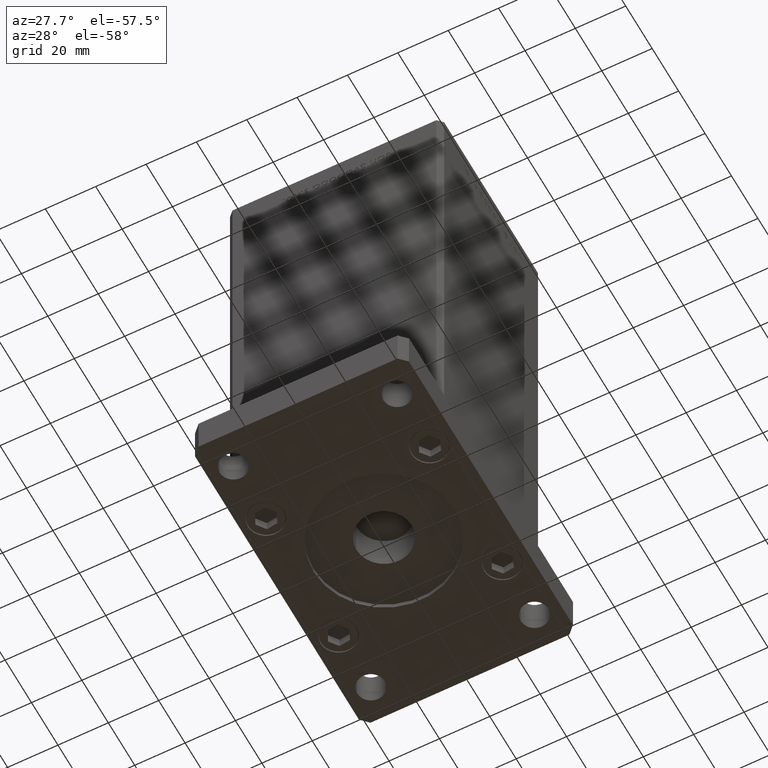
[diagram: clean part render]
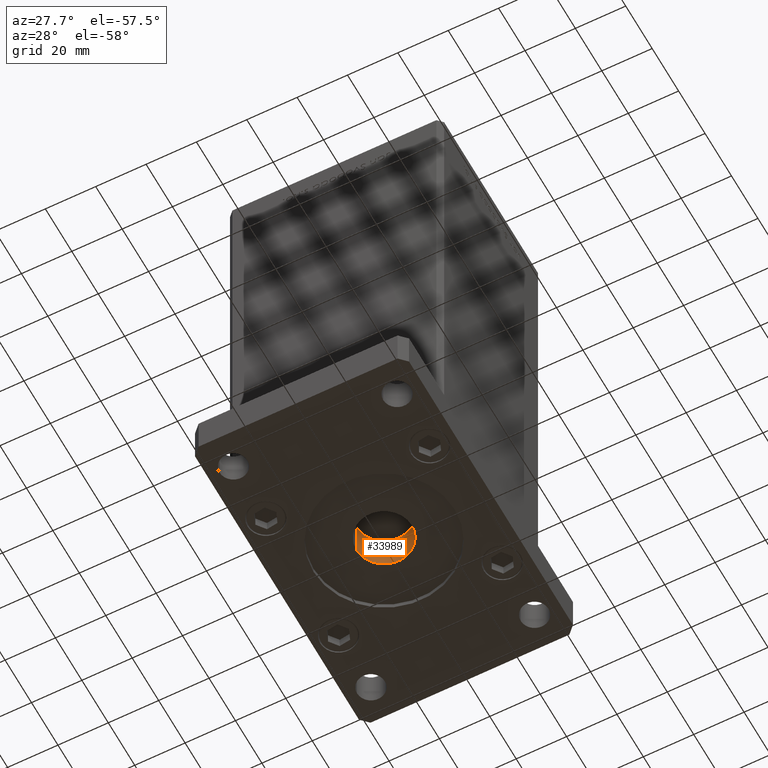
[diagram: same view with one face highlighted and labeled with its STEP entity id]
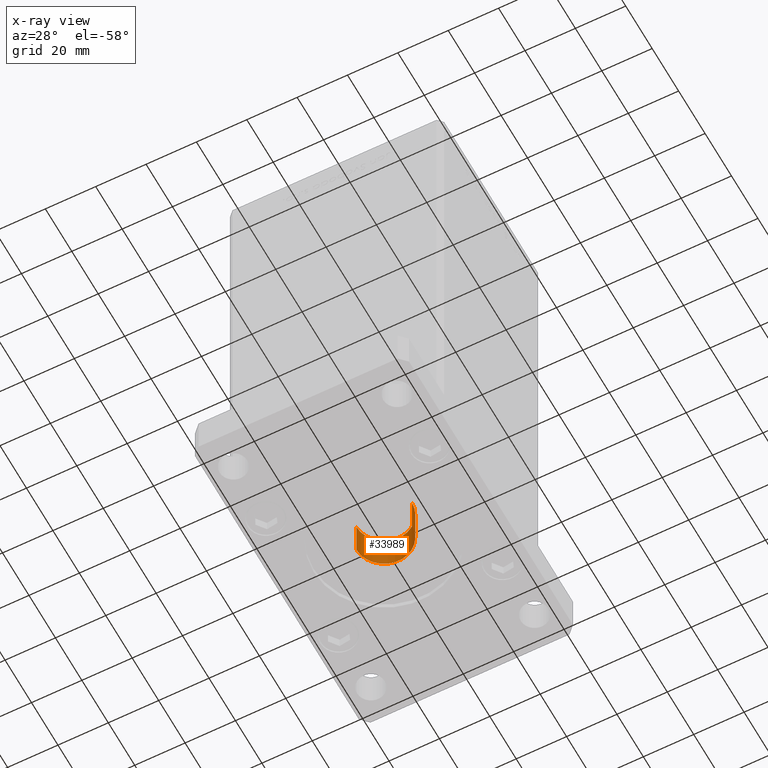
[diagram: x-ray of the same camera — body ghosted, the highlighted face saturated]
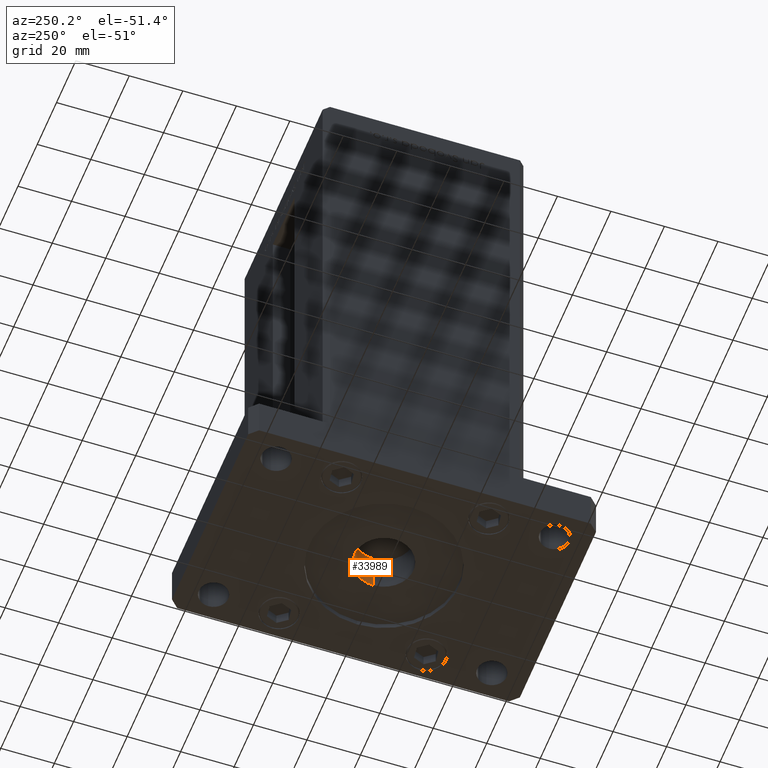
[diagram: same view with one face highlighted and labeled with its STEP entity id]
A machine part, auxiliary view. The second image highlights one B-rep face of the part: STEP entity #33989.
The next image is the same camera in x-ray: the body ghosted, the highlighted face saturated — about 0% of this face is hidden behind the body in this view.
A second angle (auxiliary view) of the same face is appended — the face is thin or edge-on in the first view.
In plain terms, the highlighted cylindrical surface (edge-blend (fillet) strip) has radius 11 mm, axis along (0, 0, 1).
Its self-contained STEP definition (entity closure, byte-faithful):
#1772 = VERTEX_POINT ( 'NONE', #16765 ) ;
#2440 = LINE ( 'NONE', #35343, #17327 ) ;
#3181 = CARTESIAN_POINT ( 'NONE',  ( 0.000000000000000000, 0.000000000000000000, 2.000000000000000000 ) ) ;
#3261 = DIRECTION ( 'NONE',  ( 1.000000000000000000, 0.000000000000000000, 0.000000000000000000 ) ) ;
#3967 = DIRECTION ( 'NONE',  ( -0.000000000000000000, -0.000000000000000000, 1.000000000000000000 ) ) ;
#5314 = EDGE_CURVE ( 'NONE', #37904, #1772, #10269, .T. ) ;
#9241 = EDGE_LOOP ( 'NONE', ( #24293, #25773, #44855, #46105 ) ) ;
#9410 = CARTESIAN_POINT ( 'NONE',  ( -11.00000000000000000, 1.347111479062088405E-15, 0.000000000000000000 ) ) ;
#9703 = DIRECTION ( 'NONE',  ( 0.000000000000000000, 0.000000000000000000, 1.000000000000000000 ) ) ;
#10269 = CIRCLE ( 'NONE', #45584, 11.00000000000000000 ) ;
#10769 = VERTEX_POINT ( 'NONE', #53103 ) ;
#13295 = CIRCLE ( 'NONE', #30485, 11.00000000000000000 ) ;
#13894 = EDGE_CURVE ( 'NONE', #50975, #37904, #2440, .T. ) ;
#15414 = CYLINDRICAL_SURFACE ( 'NONE', #19593, 11.00000000000000000 ) ;
#16765 = CARTESIAN_POINT ( 'NONE',  ( -11.00000000000000000, 1.347111479062088405E-15, 17.00000000000000000 ) ) ;
#17327 = VECTOR ( 'NONE', #51785, 1000.000000000000000 ) ;
#19448 = DIRECTION ( 'NONE',  ( -0.000000000000000000, -0.000000000000000000, 1.000000000000000000 ) ) ;
#19593 = AXIS2_PLACEMENT_3D ( 'NONE', #52609, #19448, #3261 ) ;
#24293 = ORIENTED_EDGE ( 'NONE', *, *, #33313, .F. ) ;
#24542 = CARTESIAN_POINT ( 'NONE',  ( 11.00000000000000000, 0.000000000000000000, 17.00000000000000000 ) ) ;
#25241 = EDGE_CURVE ( 'NONE', #50975, #10769, #13295, .T. ) ;
#25773 = ORIENTED_EDGE ( 'NONE', *, *, #25241, .F. ) ;
#27300 = VECTOR ( 'NONE', #43107, 1000.000000000000000 ) ;
#29707 = CARTESIAN_POINT ( 'NONE',  ( 0.000000000000000000, 0.000000000000000000, 17.00000000000000000 ) ) ;
#30485 = AXIS2_PLACEMENT_3D ( 'NONE', #3181, #3967, #52537 ) ;
#32522 = CARTESIAN_POINT ( 'NONE',  ( 11.00000000000000000, 0.000000000000000000, 2.000000000000000000 ) ) ;
#33313 = EDGE_CURVE ( 'NONE', #10769, #1772, #49614, .T. ) ;
#33989 = ADVANCED_FACE ( 'NONE', ( #48312 ), #15414, .F. ) ;
#34003 = DIRECTION ( 'NONE',  ( 1.000000000000000000, 0.000000000000000000, 0.000000000000000000 ) ) ;
#35343 = CARTESIAN_POINT ( 'NONE',  ( 11.00000000000000000, 0.000000000000000000, 0.000000000000000000 ) ) ;
#37904 = VERTEX_POINT ( 'NONE', #24542 ) ;
#43107 = DIRECTION ( 'NONE',  ( -0.000000000000000000, -0.000000000000000000, 1.000000000000000000 ) ) ;
#44855 = ORIENTED_EDGE ( 'NONE', *, *, #13894, .T. ) ;
#45584 = AXIS2_PLACEMENT_3D ( 'NONE', #29707, #9703, #34003 ) ;
#46105 = ORIENTED_EDGE ( 'NONE', *, *, #5314, .T. ) ;
#48312 = FACE_OUTER_BOUND ( 'NONE', #9241, .T. ) ;
#49614 = LINE ( 'NONE', #9410, #27300 ) ;
#50975 = VERTEX_POINT ( 'NONE', #32522 ) ;
#51785 = DIRECTION ( 'NONE',  ( -0.000000000000000000, -0.000000000000000000, 1.000000000000000000 ) ) ;
#52537 = DIRECTION ( 'NONE',  ( -1.000000000000000000, 0.000000000000000000, 0.000000000000000000 ) ) ;
#52609 = CARTESIAN_POINT ( 'NONE',  ( 0.000000000000000000, 0.000000000000000000, 0.000000000000000000 ) ) ;
#53103 = CARTESIAN_POINT ( 'NONE',  ( -11.00000000000000000, 1.347111479062088405E-15, 2.000000000000000000 ) ) ;